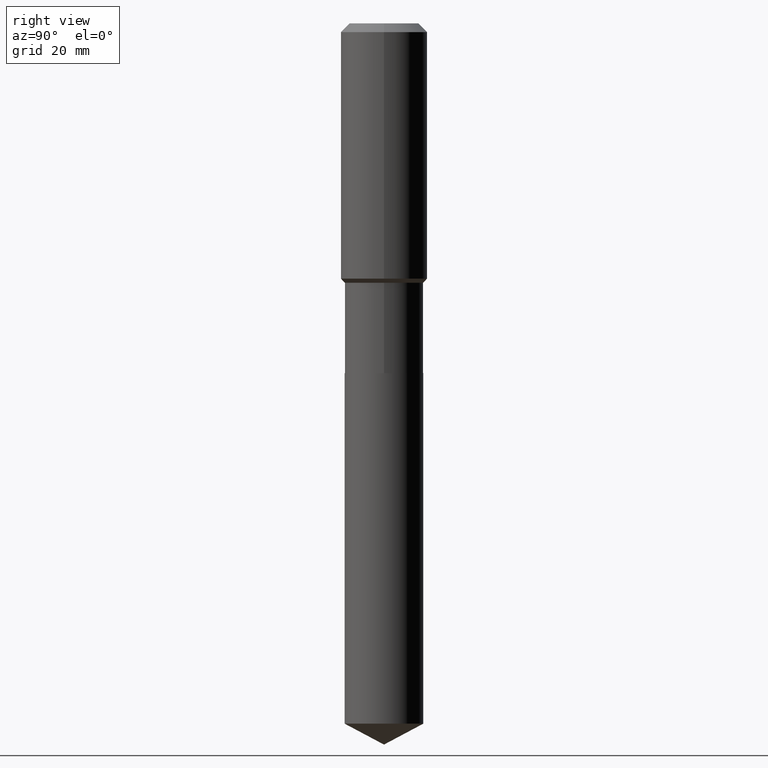
[diagram: clean part render]
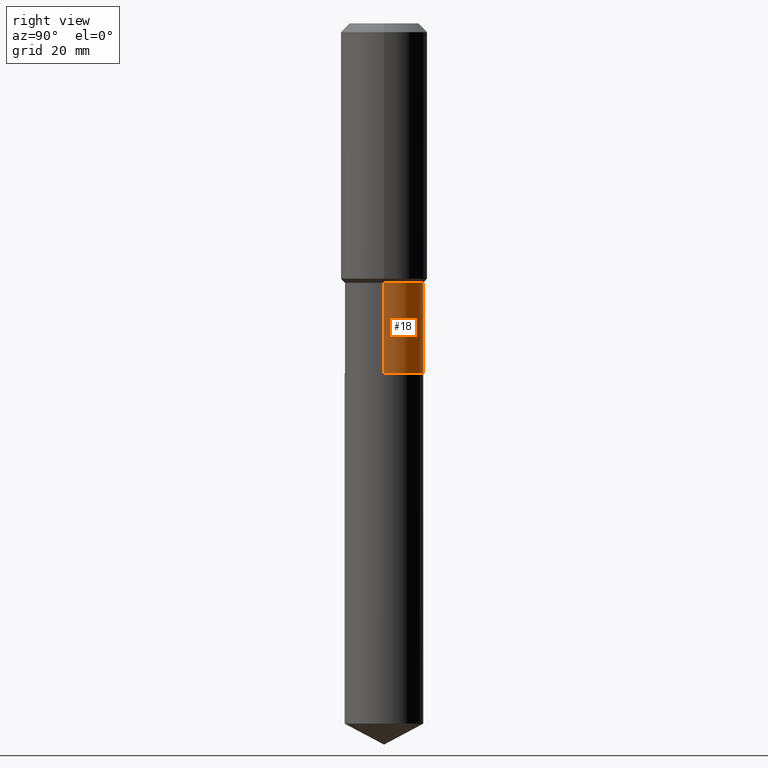
[diagram: same view with one face highlighted and labeled with its STEP entity id]
A machine part, right view. The second image highlights one B-rep face of the part: STEP entity #18.
In plain terms, the highlighted cylindrical surface (partial cylindrical patch) has radius 7.2504 mm, axis along (-0, 0, 1).
Its self-contained STEP definition (entity closure, byte-faithful):
#5 = VERTEX_POINT ( 'NONE', #239 ) ;
#18 = ADVANCED_FACE ( 'NONE', ( #386 ), #86, .T. ) ;
#24 = CARTESIAN_POINT ( 'NONE',  ( 6.208800752023443286E-29, -8.864521971188861865E-15, -2.538899999999999935 ) ) ;
#25 = VERTEX_POINT ( 'NONE', #267 ) ;
#32 = AXIS2_PLACEMENT_3D ( 'NONE', #24, #437, #182 ) ;
#44 = DIRECTION ( 'NONE',  ( 1.000000000000000000, -6.982962677686265922E-15, 4.876176775795935232E-29 ) ) ;
#59 = LINE ( 'NONE', #336, #63 ) ;
#63 = VECTOR ( 'NONE', #214, 39.37007874015748143 ) ;
#68 = ORIENTED_EDGE ( 'NONE', *, *, #348, .T. ) ;
#86 = CYLINDRICAL_SURFACE ( 'NONE', #164, 0.2854499999999999815 ) ;
#95 = CIRCLE ( 'NONE', #374, 0.2854499999999999260 ) ;
#115 = CARTESIAN_POINT ( 'NONE',  ( 0.000000000000000000, 0.000000000000000000, 0.000000000000000000 ) ) ;
#126 = CIRCLE ( 'NONE', #32, 0.2854500000000000370 ) ;
#164 = AXIS2_PLACEMENT_3D ( 'NONE', #115, #448, #44 ) ;
#182 = DIRECTION ( 'NONE',  ( 1.000000000000000000, -6.982962677686267499E-15, 0.000000000000000000 ) ) ;
#184 = ORIENTED_EDGE ( 'NONE', *, *, #431, .F. ) ;
#186 = CARTESIAN_POINT ( 'NONE',  ( -0.2854499999999999260, -5.691071852821104709E-15, -1.882900000000000240 ) ) ;
#197 = LINE ( 'NONE', #380, #298 ) ;
#214 = DIRECTION ( 'NONE',  ( -2.445468806185136877E-29, 3.491481338843145188E-15, 1.000000000000000000 ) ) ;
#227 = DIRECTION ( 'NONE',  ( -2.445468806185136877E-29, 3.491481338843145188E-15, 1.000000000000000000 ) ) ;
#238 = DIRECTION ( 'NONE',  ( 1.000000000000000000, -6.982962677686267499E-15, 0.000000000000000000 ) ) ;
#239 = CARTESIAN_POINT ( 'NONE',  ( 0.2854499999999999260, -8.567396909253303813E-15, -1.882900000000000240 ) ) ;
#254 = VERTEX_POINT ( 'NONE', #291 ) ;
#257 = ORIENTED_EDGE ( 'NONE', *, *, #287, .T. ) ;
#267 = CARTESIAN_POINT ( 'NONE',  ( 0.2854500000000000370, -1.085780866753440800E-14, -2.538899999999999935 ) ) ;
#272 = DIRECTION ( 'NONE',  ( -2.445468806185136597E-29, 3.491481338843145583E-15, 1.000000000000000000 ) ) ;
#287 = EDGE_CURVE ( 'NONE', #254, #304, #59, .T. ) ;
#291 = CARTESIAN_POINT ( 'NONE',  ( -0.2854500000000000370, -5.691071852821104709E-15, -2.538899999999999935 ) ) ;
#298 = VECTOR ( 'NONE', #227, 39.37007874015748143 ) ;
#300 = ORIENTED_EDGE ( 'NONE', *, *, #484, .F. ) ;
#304 = VERTEX_POINT ( 'NONE', #186 ) ;
#336 = CARTESIAN_POINT ( 'NONE',  ( -0.2854499999999999815, 2.028244239227205849E-15, -1.404110021513262784E-29 ) ) ;
#348 = EDGE_CURVE ( 'NONE', #25, #254, #126, .T. ) ;
#374 = AXIS2_PLACEMENT_3D ( 'NONE', #444, #272, #238 ) ;
#380 = CARTESIAN_POINT ( 'NONE',  ( 0.2854499999999999815, -1.993286696345544561E-15, 1.391904660650949682E-29 ) ) ;
#386 = FACE_OUTER_BOUND ( 'NONE', #411, .T. ) ;
#411 = EDGE_LOOP ( 'NONE', ( #68, #257, #300, #184 ) ) ;
#431 = EDGE_CURVE ( 'NONE', #25, #5, #197, .T. ) ;
#437 = DIRECTION ( 'NONE',  ( -2.445468806185136597E-29, 3.491481338843145583E-15, 1.000000000000000000 ) ) ;
#444 = CARTESIAN_POINT ( 'NONE',  ( 4.604573215165994355E-29, -6.574110212907759252E-15, -1.882900000000000240 ) ) ;
#448 = DIRECTION ( 'NONE',  ( -2.445468806185136597E-29, 3.491481338843145583E-15, 1.000000000000000000 ) ) ;
#484 = EDGE_CURVE ( 'NONE', #5, #304, #95, .T. ) ;